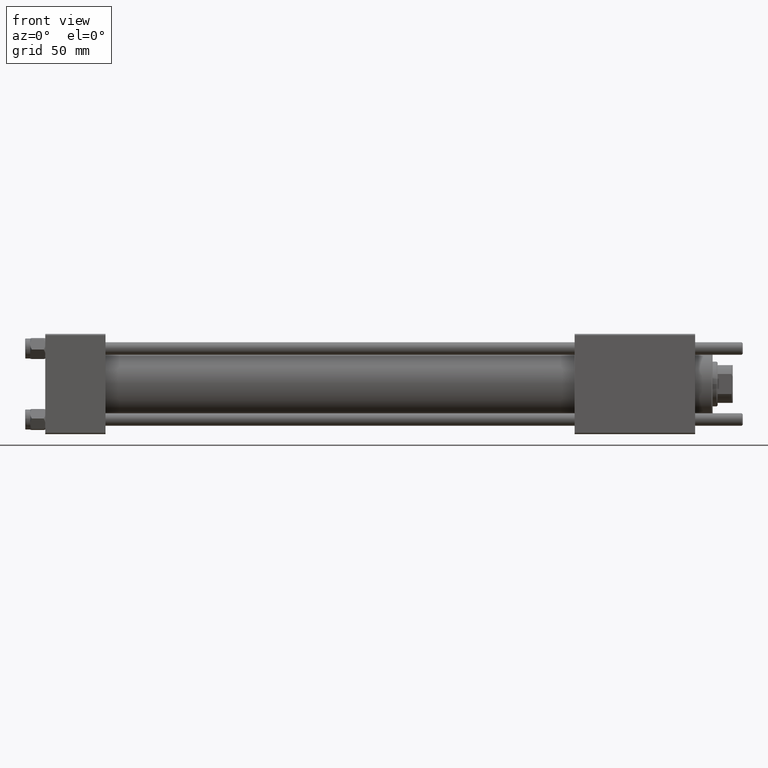
[diagram: clean part render]
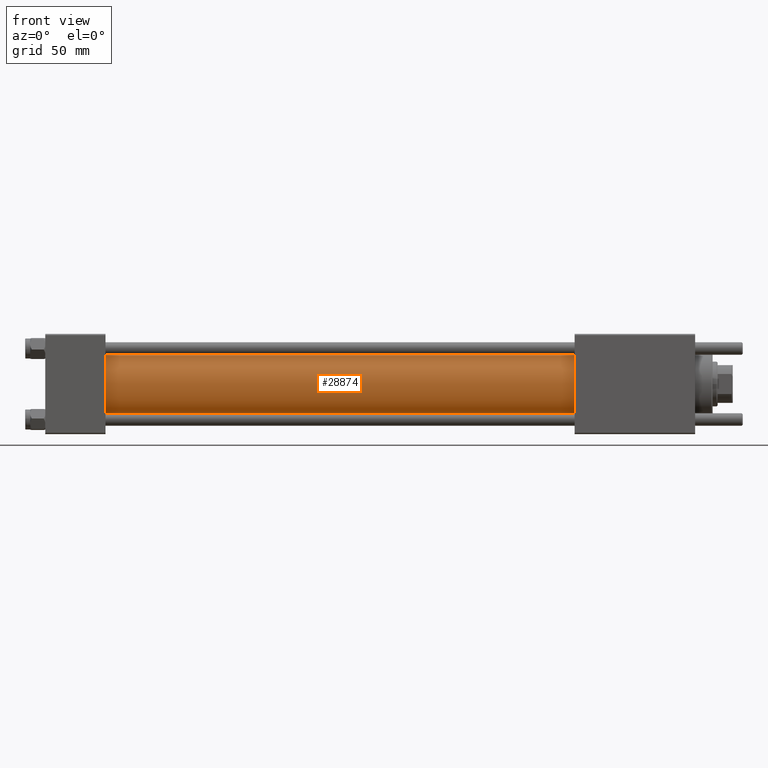
[diagram: same view with one face highlighted and labeled with its STEP entity id]
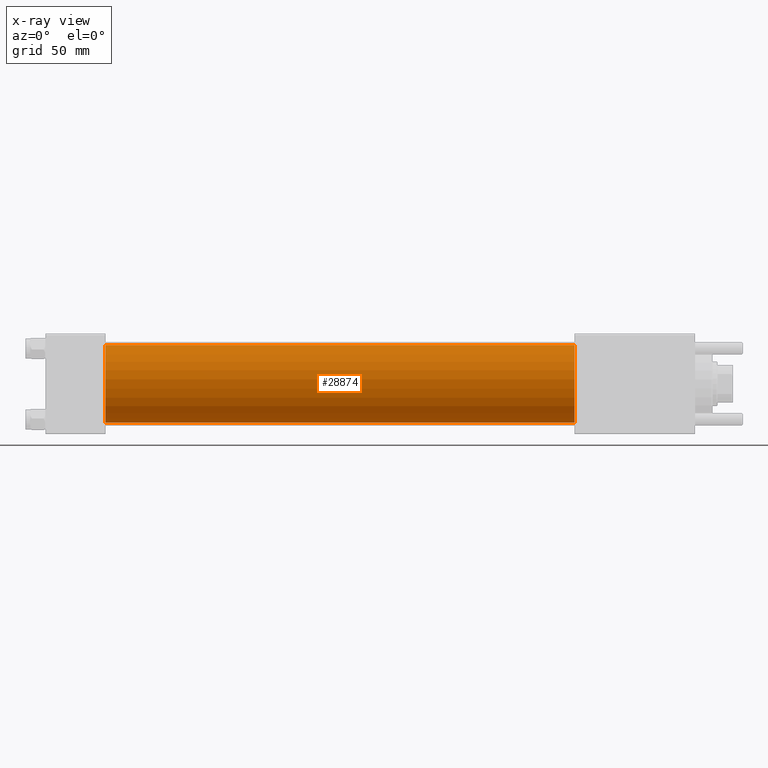
[diagram: x-ray of the same camera — body ghosted, the highlighted face saturated]
A machine part, front view. The second image highlights one B-rep face of the part: STEP entity #28874.
The next image is the same camera in x-ray: the body ghosted, the highlighted face saturated — about 0% of this face is hidden behind the body in this view.
In plain terms, the highlighted cylindrical surface (partial cylindrical patch) has radius 15.5 mm, axis along (-1, -0, -0).
Its self-contained STEP definition (entity closure, byte-faithful):
#465 = DIRECTION ( 'NONE',  ( 0.000000000000000000, 0.000000000000000000, 1.000000000000000000 ) ) ;
#1395 = EDGE_CURVE ( 'NONE', #43533, #56023, #18792, .T. ) ;
#5243 = CARTESIAN_POINT ( 'NONE',  ( 211.0000000000000000, -7.038826752868131828E-16, -15.50000000000000000 ) ) ;
#6464 = ORIENTED_EDGE ( 'NONE', *, *, #32394, .F. ) ;
#9031 = DIRECTION ( 'NONE',  ( 0.000000000000000000, 0.000000000000000000, -1.000000000000000000 ) ) ;
#9256 = ORIENTED_EDGE ( 'NONE', *, *, #22537, .T. ) ;
#10237 = CARTESIAN_POINT ( 'NONE',  ( 211.0000000000000000, -2.602085213965210642E-15, 0.000000000000000000 ) ) ;
#12946 = VERTEX_POINT ( 'NONE', #56306 ) ;
#13325 = CARTESIAN_POINT ( 'NONE',  ( 211.0000000000000000, -2.602085213965210642E-15, 0.000000000000000000 ) ) ;
#13871 = DIRECTION ( 'NONE',  ( 1.000000000000000000, 0.000000000000000000, 0.000000000000000000 ) ) ;
#15061 = DIRECTION ( 'NONE',  ( -1.000000000000000000, -0.000000000000000000, -0.000000000000000000 ) ) ;
#17684 = CARTESIAN_POINT ( 'NONE',  ( 23.99999999999999289, -2.602085213965210642E-15, 0.000000000000000000 ) ) ;
#18792 = LINE ( 'NONE', #54318, #41946 ) ;
#21406 = AXIS2_PLACEMENT_3D ( 'NONE', #17684, #43769, #465 ) ;
#22537 = EDGE_CURVE ( 'NONE', #12946, #56023, #24143, .T. ) ;
#23360 = AXIS2_PLACEMENT_3D ( 'NONE', #10237, #49777, #36022 ) ;
#24143 = CIRCLE ( 'NONE', #21406, 15.50000000000000000 ) ;
#26807 = AXIS2_PLACEMENT_3D ( 'NONE', #13325, #13871, #9031 ) ;
#28874 = ADVANCED_FACE ( 'NONE', ( #45193 ), #53223, .T. ) ;
#29607 = EDGE_LOOP ( 'NONE', ( #35699, #6464, #52843, #9256 ) ) ;
#32394 = EDGE_CURVE ( 'NONE', #47723, #43533, #35020, .T. ) ;
#35020 = CIRCLE ( 'NONE', #26807, 15.50000000000000000 ) ;
#35699 = ORIENTED_EDGE ( 'NONE', *, *, #1395, .F. ) ;
#36022 = DIRECTION ( 'NONE',  ( 0.000000000000000000, 0.000000000000000000, 1.000000000000000000 ) ) ;
#36938 = VECTOR ( 'NONE', #41752, 1000.000000000000000 ) ;
#40167 = EDGE_CURVE ( 'NONE', #47723, #12946, #50929, .T. ) ;
#41752 = DIRECTION ( 'NONE',  ( -1.000000000000000000, -0.000000000000000000, -0.000000000000000000 ) ) ;
#41946 = VECTOR ( 'NONE', #15061, 1000.000000000000000 ) ;
#43533 = VERTEX_POINT ( 'NONE', #5243 ) ;
#43769 = DIRECTION ( 'NONE',  ( 1.000000000000000000, 0.000000000000000000, 0.000000000000000000 ) ) ;
#43906 = CARTESIAN_POINT ( 'NONE',  ( 23.99999999999999289, -7.038826752868131828E-16, -15.50000000000000000 ) ) ;
#45193 = FACE_OUTER_BOUND ( 'NONE', #29607, .T. ) ;
#46353 = CARTESIAN_POINT ( 'NONE',  ( 211.0000000000000000, -2.602085213965210642E-15, 15.50000000000000000 ) ) ;
#47723 = VERTEX_POINT ( 'NONE', #54627 ) ;
#49777 = DIRECTION ( 'NONE',  ( -1.000000000000000000, -0.000000000000000000, -0.000000000000000000 ) ) ;
#50929 = LINE ( 'NONE', #46353, #36938 ) ;
#52843 = ORIENTED_EDGE ( 'NONE', *, *, #40167, .T. ) ;
#53223 = CYLINDRICAL_SURFACE ( 'NONE', #23360, 15.50000000000000000 ) ;
#54318 = CARTESIAN_POINT ( 'NONE',  ( 211.0000000000000000, -7.038826752868131828E-16, -15.50000000000000000 ) ) ;
#54627 = CARTESIAN_POINT ( 'NONE',  ( 211.0000000000000000, -2.602085213965210642E-15, 15.50000000000000000 ) ) ;
#56023 = VERTEX_POINT ( 'NONE', #43906 ) ;
#56306 = CARTESIAN_POINT ( 'NONE',  ( 23.99999999999999289, -2.602085213965210642E-15, 15.50000000000000000 ) ) ;